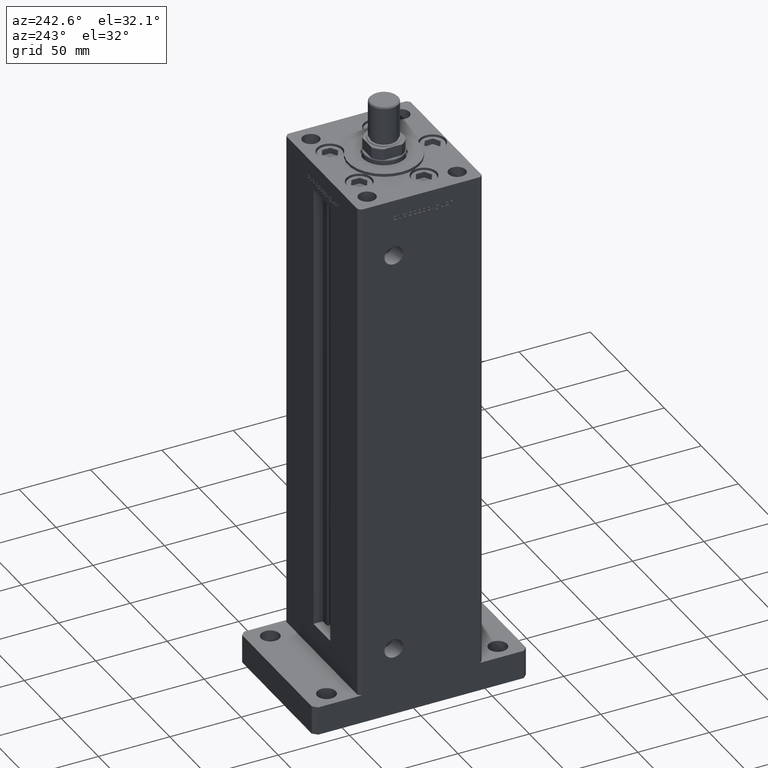
[diagram: clean part render]
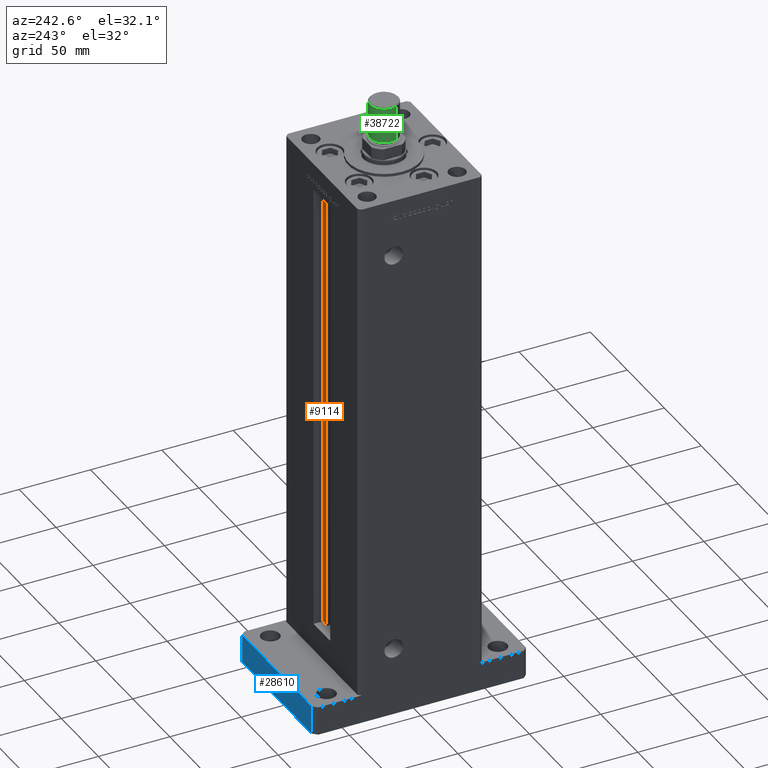
[diagram: same view with three faces highlighted in distinct colors, each labeled with its STEP entity id]
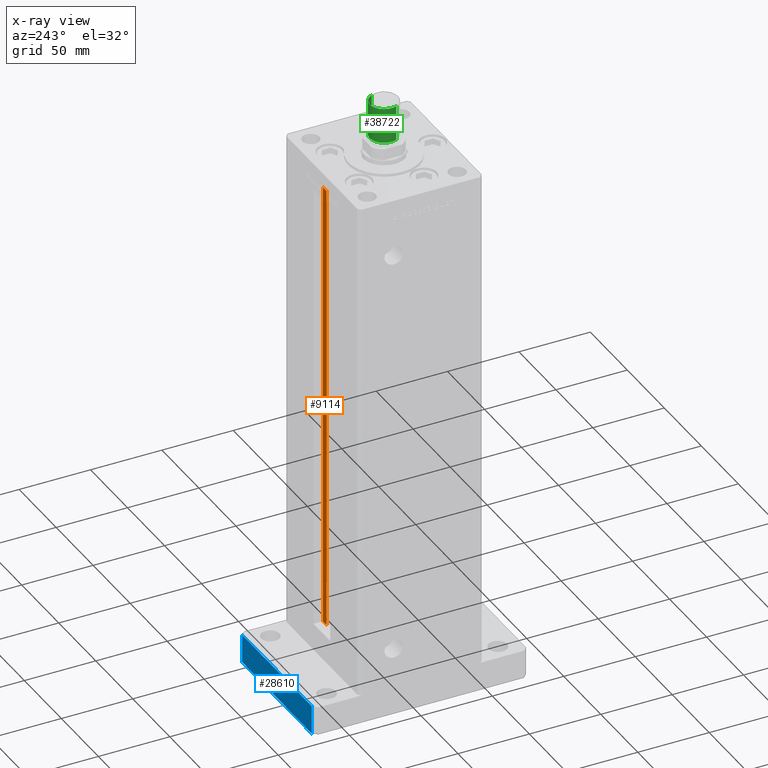
[diagram: x-ray of the same camera — body ghosted, the three highlighted faces saturated]
A machine part, auxiliary view with three faces highlighted in distinct colors.
The next image is the same camera in x-ray (body ghosted, the three faces saturated) — at least one of them is partly hidden behind the body in this view.
Their STEP definitions:

[orange] entity #9114 — the highlighted planar face has unit normal (0, -1, 0).
#518 = DIRECTION ( 'NONE',  ( -1.000000000000000000, 0.000000000000000000, 0.000000000000000000 ) ) ;
#1291 = CARTESIAN_POINT ( 'NONE',  ( 6.183333333333997928, 36.99999999999999289, 0.000000000000000000 ) ) ;
#1408 = VERTEX_POINT ( 'NONE', #9869 ) ;
#1445 = LINE ( 'NONE', #31271, #34424 ) ;
#4000 = DIRECTION ( 'NONE',  ( 0.000000000000000000, -0.000000000000000000, -1.000000000000000000 ) ) ;
#4610 = LINE ( 'NONE', #25955, #21749 ) ;
#5494 = DIRECTION ( 'NONE',  ( -0.000000000000000000, -0.000000000000000000, 1.000000000000000000 ) ) ;
#5796 = VECTOR ( 'NONE', #7129, 1000.000000000000000 ) ;
#7129 = DIRECTION ( 'NONE',  ( -0.000000000000000000, -0.000000000000000000, 1.000000000000000000 ) ) ;
#7751 = AXIS2_PLACEMENT_3D ( 'NONE', #12219, #24821, #4000 ) ;
#9114 = ADVANCED_FACE ( 'NONE', ( #53848 ), #16321, .F. ) ;
#9869 = CARTESIAN_POINT ( 'NONE',  ( 6.183333333333997928, 36.99999999999999289, 318.5000000000000000 ) ) ;
#11258 = ORIENTED_EDGE ( 'NONE', *, *, #19325, .T. ) ;
#12219 = CARTESIAN_POINT ( 'NONE',  ( 6.183333333333997928, 36.99999999999999289, 0.000000000000000000 ) ) ;
#13984 = LINE ( 'NONE', #31234, #26704 ) ;
#14624 = VERTEX_POINT ( 'NONE', #29640 ) ;
#15347 = CARTESIAN_POINT ( 'NONE',  ( 6.183333333333997928, 36.99999999999999289, 0.000000000000000000 ) ) ;
#16321 = PLANE ( 'NONE',  #7751 ) ;
#19325 = EDGE_CURVE ( 'NONE', #46589, #1408, #53696, .T. ) ;
#21749 = VECTOR ( 'NONE', #518, 1000.000000000000000 ) ;
#22802 = EDGE_LOOP ( 'NONE', ( #43079, #24955, #11258, #28846 ) ) ;
#23630 = VERTEX_POINT ( 'NONE', #36935 ) ;
#24821 = DIRECTION ( 'NONE',  ( 0.000000000000000000, -1.000000000000000000, 0.000000000000000000 ) ) ;
#24955 = ORIENTED_EDGE ( 'NONE', *, *, #27256, .F. ) ;
#25955 = CARTESIAN_POINT ( 'NONE',  ( 0.000000000000000000, 36.99999999999999289, 318.5000000000000000 ) ) ;
#26704 = VECTOR ( 'NONE', #5494, 1000.000000000000000 ) ;
#27256 = EDGE_CURVE ( 'NONE', #46589, #23630, #1445, .T. ) ;
#28846 = ORIENTED_EDGE ( 'NONE', *, *, #48559, .F. ) ;
#29640 = CARTESIAN_POINT ( 'NONE',  ( 11.24999999999999822, 36.99999999999999289, 318.5000000000000000 ) ) ;
#30467 = DIRECTION ( 'NONE',  ( 1.000000000000000000, 0.000000000000000000, 0.000000000000000000 ) ) ;
#31234 = CARTESIAN_POINT ( 'NONE',  ( 11.24999999999999822, 36.99999999999999289, 0.000000000000000000 ) ) ;
#31271 = CARTESIAN_POINT ( 'NONE',  ( 6.183333333333997928, 36.99999999999999289, 0.000000000000000000 ) ) ;
#34424 = VECTOR ( 'NONE', #30467, 1000.000000000000000 ) ;
#34829 = EDGE_CURVE ( 'NONE', #23630, #14624, #13984, .T. ) ;
#36935 = CARTESIAN_POINT ( 'NONE',  ( 11.24999999999999822, 36.99999999999999289, 0.000000000000000000 ) ) ;
#43079 = ORIENTED_EDGE ( 'NONE', *, *, #34829, .F. ) ;
#46589 = VERTEX_POINT ( 'NONE', #1291 ) ;
#48559 = EDGE_CURVE ( 'NONE', #14624, #1408, #4610, .T. ) ;
#53696 = LINE ( 'NONE', #15347, #5796 ) ;
#53848 = FACE_OUTER_BOUND ( 'NONE', #22802, .T. ) ;

[blue] entity #28610 — the highlighted planar face has unit normal (0, -1, 0).
#1189 = ORIENTED_EDGE ( 'NONE', *, *, #3656, .T. ) ;
#2344 = DIRECTION ( 'NONE',  ( -1.000000000000000000, 0.000000000000000000, 0.000000000000000000 ) ) ;
#3656 = EDGE_CURVE ( 'NONE', #46765, #6304, #28436, .T. ) ;
#3910 = LINE ( 'NONE', #49936, #32960 ) ;
#6304 = VERTEX_POINT ( 'NONE', #34743 ) ;
#7111 = CARTESIAN_POINT ( 'NONE',  ( -47.00000000000002842, 75.00000000000002842, 20.00000000000000000 ) ) ;
#7494 = CARTESIAN_POINT ( 'NONE',  ( 47.00000000000002132, 75.00000000000002842, 20.00000000000000000 ) ) ;
#11213 = VECTOR ( 'NONE', #33537, 1000.000000000000000 ) ;
#11390 = VECTOR ( 'NONE', #2344, 1000.000000000000000 ) ;
#17278 = FACE_OUTER_BOUND ( 'NONE', #27613, .T. ) ;
#19620 = AXIS2_PLACEMENT_3D ( 'NONE', #7494, #24222, #20113 ) ;
#19997 = ORIENTED_EDGE ( 'NONE', *, *, #24642, .F. ) ;
#20075 = EDGE_CURVE ( 'NONE', #52357, #25574, #3910, .T. ) ;
#20113 = DIRECTION ( 'NONE',  ( 0.000000000000000000, -0.000000000000000000, -1.000000000000000000 ) ) ;
#21187 = VECTOR ( 'NONE', #27624, 1000.000000000000000 ) ;
#24222 = DIRECTION ( 'NONE',  ( 0.000000000000000000, -1.000000000000000000, 0.000000000000000000 ) ) ;
#24642 = EDGE_CURVE ( 'NONE', #46765, #52357, #45606, .T. ) ;
#25574 = VERTEX_POINT ( 'NONE', #34285 ) ;
#27081 = ORIENTED_EDGE ( 'NONE', *, *, #52616, .T. ) ;
#27230 = CARTESIAN_POINT ( 'NONE',  ( 47.00000000000002132, 75.00000000000002842, 20.00000000000000000 ) ) ;
#27613 = EDGE_LOOP ( 'NONE', ( #27081, #33154, #19997, #1189 ) ) ;
#27624 = DIRECTION ( 'NONE',  ( -0.000000000000000000, -0.000000000000000000, -1.000000000000000000 ) ) ;
#28436 = LINE ( 'NONE', #44874, #21187 ) ;
#28610 = ADVANCED_FACE ( 'NONE', ( #17278 ), #45047, .F. ) ;
#30820 = CARTESIAN_POINT ( 'NONE',  ( 47.00000000000002132, 75.00000000000002842, 0.000000000000000000 ) ) ;
#32960 = VECTOR ( 'NONE', #45017, 1000.000000000000000 ) ;
#33154 = ORIENTED_EDGE ( 'NONE', *, *, #20075, .F. ) ;
#33537 = DIRECTION ( 'NONE',  ( -1.000000000000000000, 0.000000000000000000, 0.000000000000000000 ) ) ;
#34285 = CARTESIAN_POINT ( 'NONE',  ( -47.00000000000002842, 75.00000000000002842, 0.000000000000000000 ) ) ;
#34743 = CARTESIAN_POINT ( 'NONE',  ( 47.00000000000002132, 75.00000000000002842, 0.000000000000000000 ) ) ;
#39571 = LINE ( 'NONE', #30820, #11390 ) ;
#44874 = CARTESIAN_POINT ( 'NONE',  ( 47.00000000000002132, 75.00000000000002842, 20.00000000000000000 ) ) ;
#45017 = DIRECTION ( 'NONE',  ( -0.000000000000000000, -0.000000000000000000, -1.000000000000000000 ) ) ;
#45047 = PLANE ( 'NONE',  #19620 ) ;
#45606 = LINE ( 'NONE', #50799, #11213 ) ;
#46765 = VERTEX_POINT ( 'NONE', #27230 ) ;
#49936 = CARTESIAN_POINT ( 'NONE',  ( -47.00000000000002842, 75.00000000000002842, 20.00000000000000000 ) ) ;
#50799 = CARTESIAN_POINT ( 'NONE',  ( 47.00000000000002132, 75.00000000000002842, 20.00000000000000000 ) ) ;
#52357 = VERTEX_POINT ( 'NONE', #7111 ) ;
#52616 = EDGE_CURVE ( 'NONE', #6304, #25574, #39571, .T. ) ;

[green] entity #38722 — the highlighted cylindrical surface (edge-blend (fillet) strip) has radius 10 mm, axis along (0, 0, 1).
#1121 = ORIENTED_EDGE ( 'NONE', *, *, #37528, .F. ) ;
#2346 = CARTESIAN_POINT ( 'NONE',  ( 0.000000000000000000, 0.000000000000000000, 0.7999999999999986011 ) ) ;
#4230 = DIRECTION ( 'NONE',  ( -1.000000000000000000, 0.000000000000000000, 0.000000000000000000 ) ) ;
#6593 = CARTESIAN_POINT ( 'NONE',  ( 10.00000000000000000, 1.224646799147353256E-15, 0.7999999999999986011 ) ) ;
#7768 = CARTESIAN_POINT ( 'NONE',  ( -10.00000000000000000, 0.000000000000000000, 0.7999999999999986011 ) ) ;
#8780 = CARTESIAN_POINT ( 'NONE',  ( 10.00000000000000000, 1.224646799147353256E-15, 25.50000000000000000 ) ) ;
#10027 = AXIS2_PLACEMENT_3D ( 'NONE', #28897, #29163, #4230 ) ;
#11974 = VECTOR ( 'NONE', #38522, 1000.000000000000000 ) ;
#12714 = EDGE_CURVE ( 'NONE', #16903, #19849, #45512, .T. ) ;
#16593 = CIRCLE ( 'NONE', #23599, 10.00000000000000000 ) ;
#16903 = VERTEX_POINT ( 'NONE', #8780 ) ;
#19849 = VERTEX_POINT ( 'NONE', #50876 ) ;
#20635 = DIRECTION ( 'NONE',  ( 0.000000000000000000, 0.000000000000000000, 1.000000000000000000 ) ) ;
#23599 = AXIS2_PLACEMENT_3D ( 'NONE', #2346, #26708, #35185 ) ;
#23684 = ORIENTED_EDGE ( 'NONE', *, *, #12714, .F. ) ;
#24750 = CARTESIAN_POINT ( 'NONE',  ( 0.000000000000000000, 0.000000000000000000, 25.50000000000000000 ) ) ;
#26695 = VERTEX_POINT ( 'NONE', #6593 ) ;
#26708 = DIRECTION ( 'NONE',  ( -0.000000000000000000, -0.000000000000000000, 1.000000000000000000 ) ) ;
#28897 = CARTESIAN_POINT ( 'NONE',  ( 0.000000000000000000, 0.000000000000000000, 25.50000000000000000 ) ) ;
#29163 = DIRECTION ( 'NONE',  ( -0.000000000000000000, -0.000000000000000000, -1.000000000000000000 ) ) ;
#32723 = FACE_OUTER_BOUND ( 'NONE', #43614, .T. ) ;
#33251 = ORIENTED_EDGE ( 'NONE', *, *, #50667, .T. ) ;
#33459 = VERTEX_POINT ( 'NONE', #7768 ) ;
#33585 = DIRECTION ( 'NONE',  ( -0.000000000000000000, -0.000000000000000000, -1.000000000000000000 ) ) ;
#34111 = AXIS2_PLACEMENT_3D ( 'NONE', #24750, #20635, #49955 ) ;
#34152 = LINE ( 'NONE', #34937, #11974 ) ;
#34937 = CARTESIAN_POINT ( 'NONE',  ( 10.00000000000000000, 1.224646799147353256E-15, 25.50000000000000000 ) ) ;
#35185 = DIRECTION ( 'NONE',  ( 1.000000000000000000, 0.000000000000000000, 0.000000000000000000 ) ) ;
#36562 = CYLINDRICAL_SURFACE ( 'NONE', #10027, 10.00000000000000000 ) ;
#37528 = EDGE_CURVE ( 'NONE', #19849, #33459, #45914, .T. ) ;
#38522 = DIRECTION ( 'NONE',  ( -0.000000000000000000, -0.000000000000000000, -1.000000000000000000 ) ) ;
#38722 = ADVANCED_FACE ( 'NONE', ( #32723 ), #36562, .T. ) ;
#41011 = ORIENTED_EDGE ( 'NONE', *, *, #44339, .T. ) ;
#43614 = EDGE_LOOP ( 'NONE', ( #23684, #41011, #33251, #1121 ) ) ;
#44153 = VECTOR ( 'NONE', #33585, 1000.000000000000000 ) ;
#44339 = EDGE_CURVE ( 'NONE', #16903, #26695, #34152, .T. ) ;
#45512 = CIRCLE ( 'NONE', #34111, 10.00000000000000000 ) ;
#45914 = LINE ( 'NONE', #49490, #44153 ) ;
#49490 = CARTESIAN_POINT ( 'NONE',  ( -10.00000000000000000, 0.000000000000000000, 25.50000000000000000 ) ) ;
#49955 = DIRECTION ( 'NONE',  ( 1.000000000000000000, 0.000000000000000000, 0.000000000000000000 ) ) ;
#50667 = EDGE_CURVE ( 'NONE', #26695, #33459, #16593, .T. ) ;
#50876 = CARTESIAN_POINT ( 'NONE',  ( -10.00000000000000000, 0.000000000000000000, 25.50000000000000000 ) ) ;